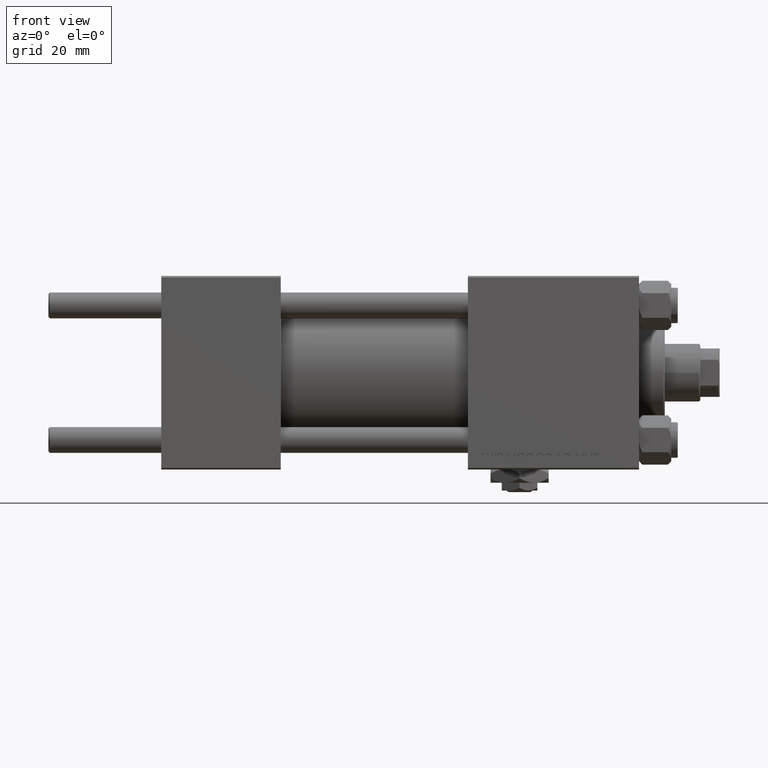
[diagram: clean part render]
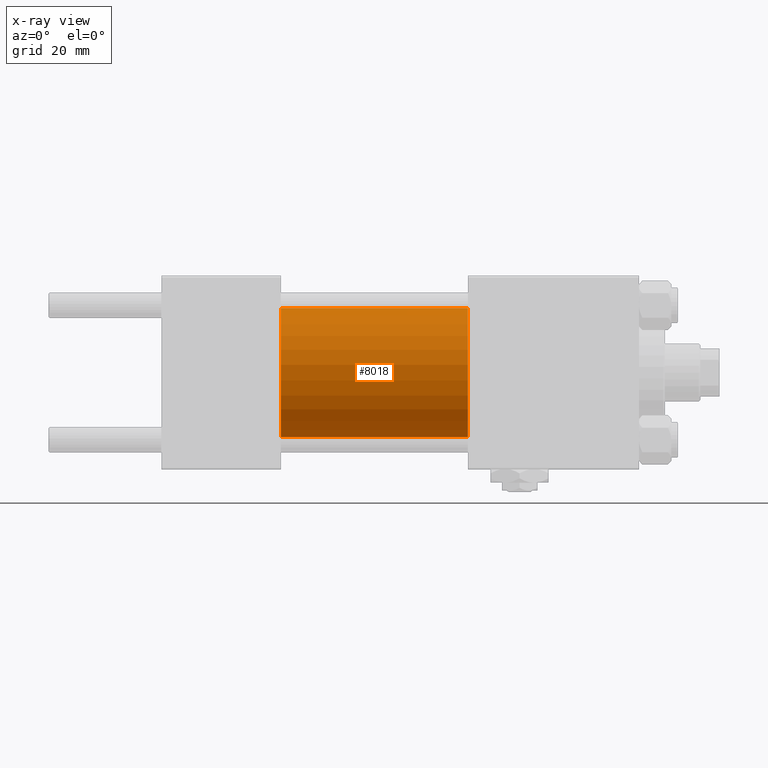
[diagram: x-ray — body ghosted, one internal face saturated and labeled with its STEP entity id]
A machine part, front view, then the same camera in x-ray: the body is ghosted and one INTERNAL B-rep face — a face not visible from any outside direction — is saturated and labeled: STEP entity #8018.
In plain terms, the highlighted cylindrical surface (partial cylindrical patch) has radius 20 mm, axis along (-1, -0, -0).
Its self-contained STEP definition (entity closure, byte-faithful):
#2053 = FACE_OUTER_BOUND ( 'NONE', #46268, .T. ) ;
#2609 = AXIS2_PLACEMENT_3D ( 'NONE', #15940, #31585, #27408 ) ;
#5128 = VERTEX_POINT ( 'NONE', #19546 ) ;
#6557 = EDGE_CURVE ( 'NONE', #49271, #5128, #32565, .T. ) ;
#8018 = ADVANCED_FACE ( 'NONE', ( #2053 ), #50280, .F. ) ;
#8419 = LINE ( 'NONE', #35538, #25187 ) ;
#9830 = EDGE_CURVE ( 'NONE', #5128, #37333, #8419, .T. ) ;
#10886 = DIRECTION ( 'NONE',  ( -1.000000000000000000, -0.000000000000000000, -0.000000000000000000 ) ) ;
#11705 = VECTOR ( 'NONE', #46587, 1000.000000000000000 ) ;
#12690 = AXIS2_PLACEMENT_3D ( 'NONE', #14031, #10886, #42201 ) ;
#13794 = CARTESIAN_POINT ( 'NONE',  ( 37.00000000000000000, 0.000000000000000000, 0.000000000000000000 ) ) ;
#14031 = CARTESIAN_POINT ( 'NONE',  ( 95.00000000000000000, 0.000000000000000000, 0.000000000000000000 ) ) ;
#15940 = CARTESIAN_POINT ( 'NONE',  ( 95.00000000000000000, 0.000000000000000000, 0.000000000000000000 ) ) ;
#16500 = DIRECTION ( 'NONE',  ( -1.000000000000000000, -0.000000000000000000, -0.000000000000000000 ) ) ;
#17389 = VERTEX_POINT ( 'NONE', #22110 ) ;
#19546 = CARTESIAN_POINT ( 'NONE',  ( 95.00000000000000000, 2.449293598294706119E-15, -20.00000000000000000 ) ) ;
#22110 = CARTESIAN_POINT ( 'NONE',  ( 37.00000000000000000, 0.000000000000000000, 20.00000000000000000 ) ) ;
#25003 = DIRECTION ( 'NONE',  ( 0.000000000000000000, 0.000000000000000000, -1.000000000000000000 ) ) ;
#25187 = VECTOR ( 'NONE', #16500, 1000.000000000000000 ) ;
#25348 = ORIENTED_EDGE ( 'NONE', *, *, #40056, .F. ) ;
#27408 = DIRECTION ( 'NONE',  ( 0.000000000000000000, 0.000000000000000000, -1.000000000000000000 ) ) ;
#28845 = CARTESIAN_POINT ( 'NONE',  ( 37.00000000000000000, 2.449293598294706119E-15, -20.00000000000000000 ) ) ;
#31585 = DIRECTION ( 'NONE',  ( 1.000000000000000000, 0.000000000000000000, 0.000000000000000000 ) ) ;
#32565 = CIRCLE ( 'NONE', #2609, 20.00000000000000000 ) ;
#33177 = ORIENTED_EDGE ( 'NONE', *, *, #9830, .T. ) ;
#34851 = CARTESIAN_POINT ( 'NONE',  ( 95.00000000000000000, 0.000000000000000000, 20.00000000000000000 ) ) ;
#35103 = LINE ( 'NONE', #34851, #11705 ) ;
#35538 = CARTESIAN_POINT ( 'NONE',  ( 95.00000000000000000, 2.449293598294706119E-15, -20.00000000000000000 ) ) ;
#35854 = CIRCLE ( 'NONE', #39185, 20.00000000000000000 ) ;
#37333 = VERTEX_POINT ( 'NONE', #28845 ) ;
#39051 = EDGE_CURVE ( 'NONE', #17389, #37333, #35854, .T. ) ;
#39185 = AXIS2_PLACEMENT_3D ( 'NONE', #13794, #45095, #25003 ) ;
#40028 = ORIENTED_EDGE ( 'NONE', *, *, #39051, .F. ) ;
#40056 = EDGE_CURVE ( 'NONE', #49271, #17389, #35103, .T. ) ;
#40312 = ORIENTED_EDGE ( 'NONE', *, *, #6557, .T. ) ;
#42201 = DIRECTION ( 'NONE',  ( 0.000000000000000000, 0.000000000000000000, 1.000000000000000000 ) ) ;
#44436 = CARTESIAN_POINT ( 'NONE',  ( 95.00000000000000000, 0.000000000000000000, 20.00000000000000000 ) ) ;
#45095 = DIRECTION ( 'NONE',  ( 1.000000000000000000, 0.000000000000000000, 0.000000000000000000 ) ) ;
#46268 = EDGE_LOOP ( 'NONE', ( #40312, #33177, #40028, #25348 ) ) ;
#46587 = DIRECTION ( 'NONE',  ( -1.000000000000000000, -0.000000000000000000, -0.000000000000000000 ) ) ;
#49271 = VERTEX_POINT ( 'NONE', #44436 ) ;
#50280 = CYLINDRICAL_SURFACE ( 'NONE', #12690, 20.00000000000000000 ) ;